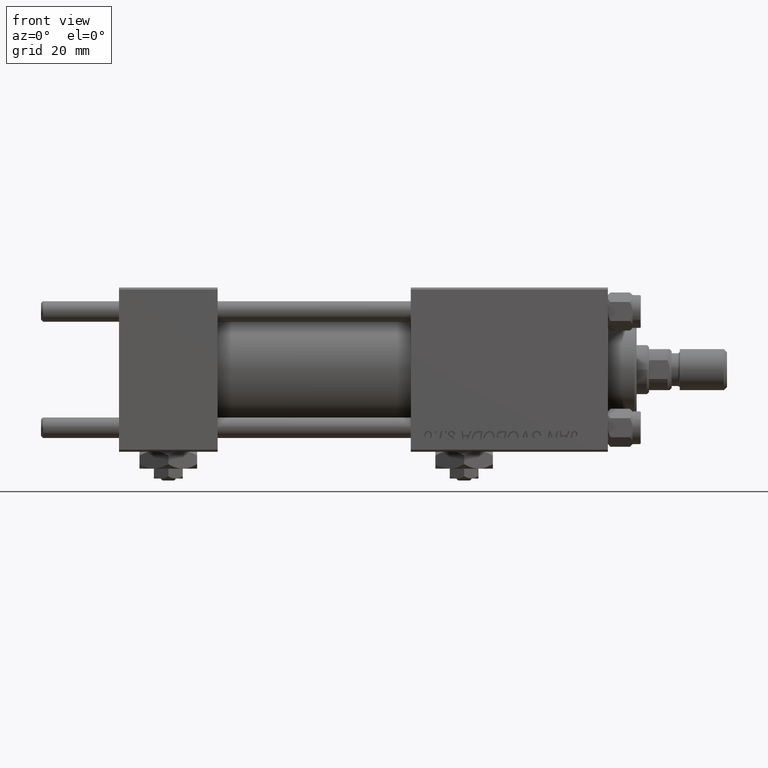
[diagram: clean part render]
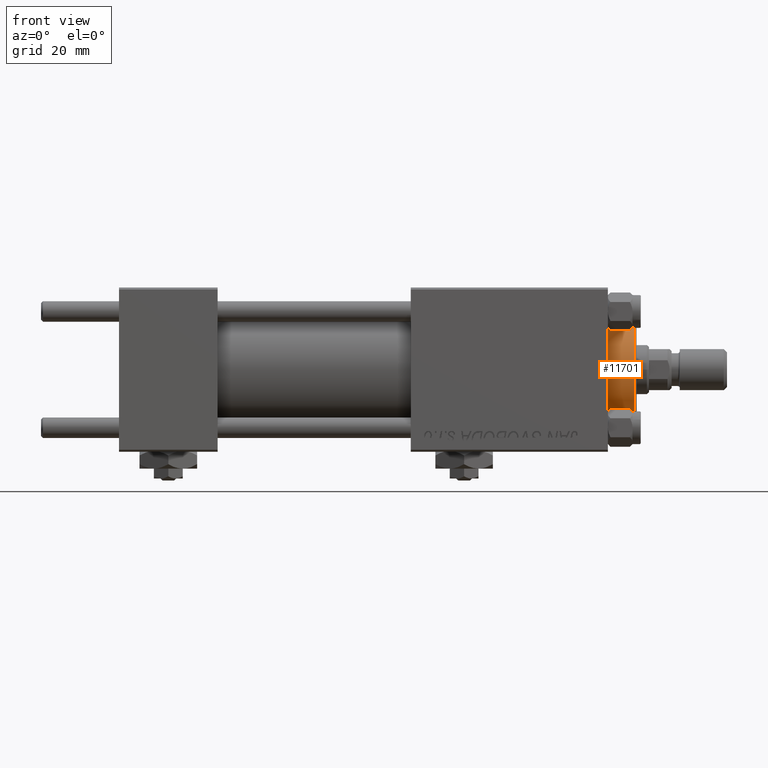
[diagram: same view with one face highlighted and labeled with its STEP entity id]
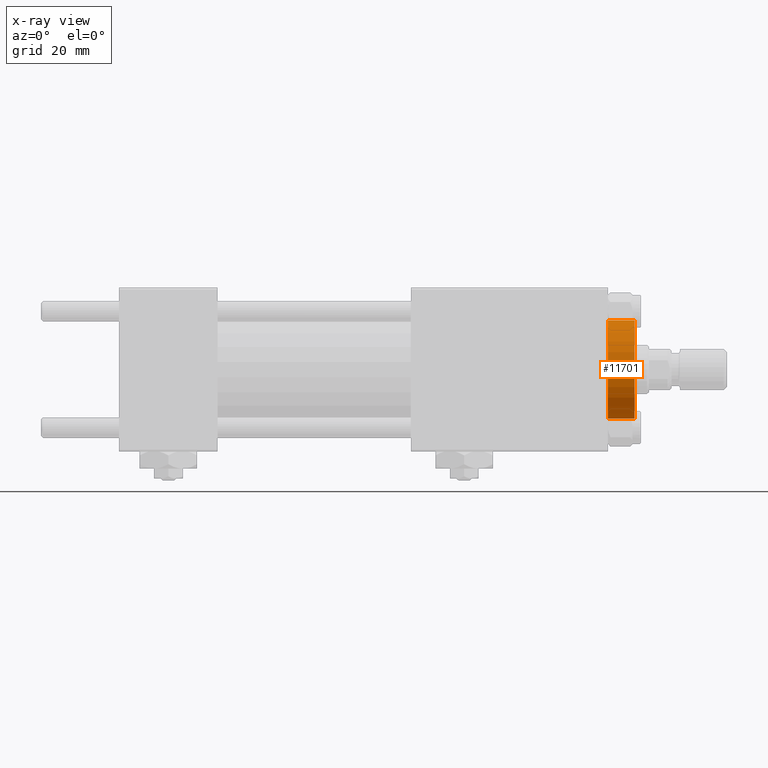
[diagram: x-ray of the same camera — body ghosted, the highlighted face saturated]
A machine part, front view. The second image highlights one B-rep face of the part: STEP entity #11701.
The next image is the same camera in x-ray: the body ghosted, the highlighted face saturated — about 0% of this face is hidden behind the body in this view.
In plain terms, the highlighted cylindrical surface (partial cylindrical patch) has radius 12 mm, axis along (-1, -0, 0).
Its self-contained STEP definition (entity closure, byte-faithful):
#584 = AXIS2_PLACEMENT_3D ( 'NONE', #10159, #18103, #34217 ) ;
#623 = CIRCLE ( 'NONE', #584, 12.00000000000000178 ) ;
#1763 = EDGE_CURVE ( 'NONE', #20534, #13787, #25237, .T. ) ;
#2065 = EDGE_CURVE ( 'NONE', #20534, #4945, #23330, .T. ) ;
#2883 = ORIENTED_EDGE ( 'NONE', *, *, #1763, .F. ) ;
#4410 = EDGE_CURVE ( 'NONE', #25058, #13787, #623, .T. ) ;
#4945 = VERTEX_POINT ( 'NONE', #10230 ) ;
#6887 = EDGE_LOOP ( 'NONE', ( #2883, #23691, #21618, #35633 ) ) ;
#7120 = AXIS2_PLACEMENT_3D ( 'NONE', #15620, #19584, #51283 ) ;
#10159 = CARTESIAN_POINT ( 'NONE',  ( 0.000000000000000000, 0.000000000000000000, 28.69999999999999929 ) ) ;
#10230 = CARTESIAN_POINT ( 'NONE',  ( -12.00000000000000178, 0.000000000000000000, 35.19999999999999574 ) ) ;
#11701 = ADVANCED_FACE ( 'NONE', ( #15359 ), #23297, .T. ) ;
#13787 = VERTEX_POINT ( 'NONE', #43235 ) ;
#15359 = FACE_OUTER_BOUND ( 'NONE', #6887, .T. ) ;
#15620 = CARTESIAN_POINT ( 'NONE',  ( 0.000000000000000000, 0.000000000000000000, 35.70000000000000284 ) ) ;
#15739 = AXIS2_PLACEMENT_3D ( 'NONE', #33806, #29840, #45946 ) ;
#18103 = DIRECTION ( 'NONE',  ( 0.000000000000000000, 0.000000000000000000, 1.000000000000000000 ) ) ;
#19584 = DIRECTION ( 'NONE',  ( -0.000000000000000000, -0.000000000000000000, -1.000000000000000000 ) ) ;
#20534 = VERTEX_POINT ( 'NONE', #43973 ) ;
#21255 = CARTESIAN_POINT ( 'NONE',  ( 12.00000000000000178, 1.469576158976824144E-15, 35.70000000000000284 ) ) ;
#21518 = DIRECTION ( 'NONE',  ( -0.000000000000000000, -0.000000000000000000, -1.000000000000000000 ) ) ;
#21618 = ORIENTED_EDGE ( 'NONE', *, *, #32793, .T. ) ;
#22331 = CARTESIAN_POINT ( 'NONE',  ( -12.00000000000000178, 0.000000000000000000, 35.70000000000000284 ) ) ;
#23297 = CYLINDRICAL_SURFACE ( 'NONE', #7120, 12.00000000000000178 ) ;
#23330 = CIRCLE ( 'NONE', #15739, 12.00000000000000178 ) ;
#23691 = ORIENTED_EDGE ( 'NONE', *, *, #2065, .T. ) ;
#25058 = VERTEX_POINT ( 'NONE', #36359 ) ;
#25237 = LINE ( 'NONE', #21255, #32652 ) ;
#25794 = LINE ( 'NONE', #22331, #45576 ) ;
#29840 = DIRECTION ( 'NONE',  ( 0.000000000000000000, 0.000000000000000000, -1.000000000000000000 ) ) ;
#32652 = VECTOR ( 'NONE', #21518, 1000.000000000000000 ) ;
#32793 = EDGE_CURVE ( 'NONE', #4945, #25058, #25794, .T. ) ;
#33806 = CARTESIAN_POINT ( 'NONE',  ( 0.000000000000000000, 0.000000000000000000, 35.19999999999999574 ) ) ;
#34217 = DIRECTION ( 'NONE',  ( 1.000000000000000000, 0.000000000000000000, 0.000000000000000000 ) ) ;
#35633 = ORIENTED_EDGE ( 'NONE', *, *, #4410, .T. ) ;
#36359 = CARTESIAN_POINT ( 'NONE',  ( -12.00000000000000178, 0.000000000000000000, 28.69999999999999929 ) ) ;
#38439 = DIRECTION ( 'NONE',  ( -0.000000000000000000, -0.000000000000000000, -1.000000000000000000 ) ) ;
#43235 = CARTESIAN_POINT ( 'NONE',  ( 12.00000000000000178, 1.469576158976824144E-15, 28.69999999999999929 ) ) ;
#43973 = CARTESIAN_POINT ( 'NONE',  ( 12.00000000000000178, 1.469576158976824144E-15, 35.19999999999999574 ) ) ;
#45576 = VECTOR ( 'NONE', #38439, 1000.000000000000000 ) ;
#45946 = DIRECTION ( 'NONE',  ( 1.000000000000000000, 0.000000000000000000, 0.000000000000000000 ) ) ;
#51283 = DIRECTION ( 'NONE',  ( -1.000000000000000000, 0.000000000000000000, 0.000000000000000000 ) ) ;